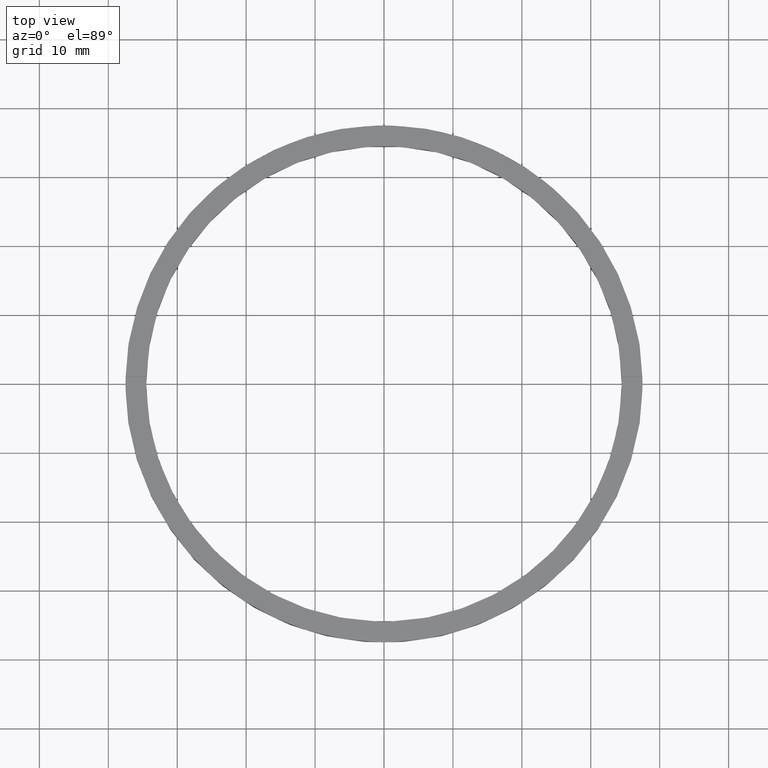
[diagram: clean part render]
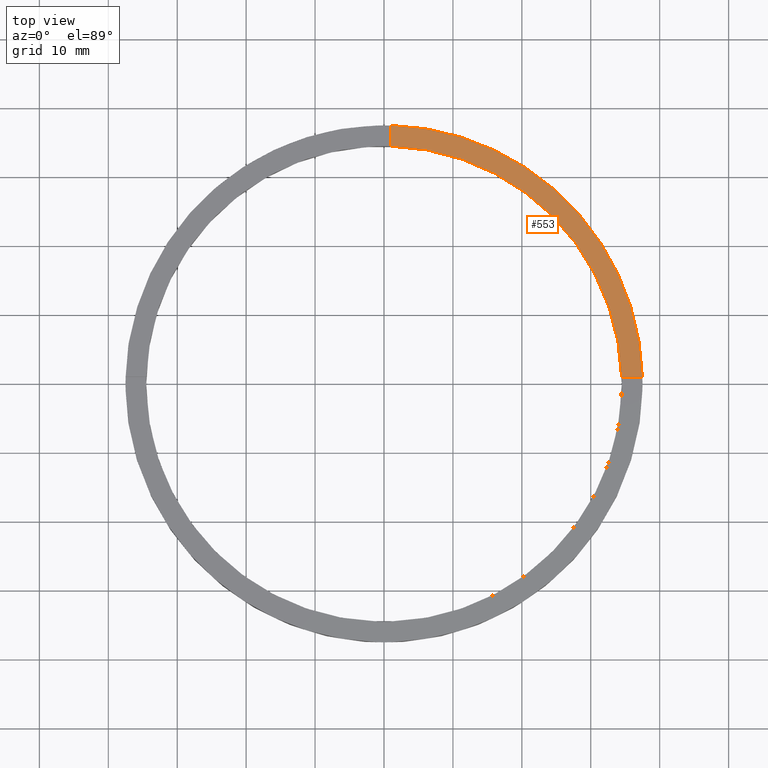
[diagram: same view with one face highlighted and labeled with its STEP entity id]
A machine part, top view. The second image highlights one B-rep face of the part: STEP entity #553.
In plain terms, the highlighted planar face has unit normal (0, 0, 1).
Its self-contained STEP definition (entity closure, byte-faithful):
#5 = DIRECTION ( 'NONE',  ( 0.000000000000000000, 1.000000000000000000, 0.000000000000000000 ) ) ;
#24 = FACE_OUTER_BOUND ( 'NONE', #175, .T. ) ;
#72 = CARTESIAN_POINT ( 'NONE',  ( 0.000000000000000000, 0.000000000000000000, 3.500000000000000000 ) ) ;
#91 = LINE ( 'NONE', #452, #348 ) ;
#118 = CARTESIAN_POINT ( 'NONE',  ( 37.48666429545313150, 0.9999999999998425704, 3.500000000000000000 ) ) ;
#159 = CARTESIAN_POINT ( 'NONE',  ( 34.48550420104076153, 0.9999999999998423483, 3.500000000000000000 ) ) ;
#161 = VERTEX_POINT ( 'NONE', #118 ) ;
#172 = DIRECTION ( 'NONE',  ( 0.000000000000000000, 0.000000000000000000, 1.000000000000000000 ) ) ;
#175 = EDGE_LOOP ( 'NONE', ( #438, #743, #426, #428 ) ) ;
#256 = CIRCLE ( 'NONE', #572, 34.49999999999999289 ) ;
#280 = CARTESIAN_POINT ( 'NONE',  ( 0.000000000000000000, 0.000000000000000000, 3.500000000000000000 ) ) ;
#281 = LINE ( 'NONE', #765, #536 ) ;
#309 = VERTEX_POINT ( 'NONE', #328 ) ;
#328 = CARTESIAN_POINT ( 'NONE',  ( 0.9999999999999746869, 34.48550420104076153, 3.500000000000000000 ) ) ;
#338 = EDGE_CURVE ( 'NONE', #161, #447, #534, .T. ) ;
#348 = VECTOR ( 'NONE', #5, 1000.000000000000000 ) ;
#354 = DIRECTION ( 'NONE',  ( 1.000000000000000000, 0.000000000000000000, 0.000000000000000000 ) ) ;
#357 = DIRECTION ( 'NONE',  ( 1.000000000000000000, 0.000000000000000000, -0.000000000000000000 ) ) ;
#374 = DIRECTION ( 'NONE',  ( -1.000000000000000000, -6.505213034913025371E-17, -0.000000000000000000 ) ) ;
#376 = DIRECTION ( 'NONE',  ( 0.000000000000000000, 0.000000000000000000, 1.000000000000000000 ) ) ;
#391 = PLANE ( 'NONE',  #511 ) ;
#426 = ORIENTED_EDGE ( 'NONE', *, *, #476, .F. ) ;
#427 = VERTEX_POINT ( 'NONE', #159 ) ;
#428 = ORIENTED_EDGE ( 'NONE', *, *, #338, .T. ) ;
#434 = EDGE_CURVE ( 'NONE', #427, #309, #256, .T. ) ;
#438 = ORIENTED_EDGE ( 'NONE', *, *, #694, .F. ) ;
#443 = DIRECTION ( 'NONE',  ( 1.000000000000000000, 0.000000000000000000, 0.000000000000000000 ) ) ;
#447 = VERTEX_POINT ( 'NONE', #571 ) ;
#452 = CARTESIAN_POINT ( 'NONE',  ( 0.9999999999999746869, 27.50000000000000355, 3.500000000000000000 ) ) ;
#476 = EDGE_CURVE ( 'NONE', #161, #427, #281, .T. ) ;
#511 = AXIS2_PLACEMENT_3D ( 'NONE', #766, #376, #357 ) ;
#534 = CIRCLE ( 'NONE', #677, 37.50000000000000711 ) ;
#536 = VECTOR ( 'NONE', #374, 1000.000000000000000 ) ;
#553 = ADVANCED_FACE ( 'NONE', ( #24 ), #391, .T. ) ;
#571 = CARTESIAN_POINT ( 'NONE',  ( 0.9999999999999746869, 37.48666429545313150, 3.500000000000000000 ) ) ;
#572 = AXIS2_PLACEMENT_3D ( 'NONE', #72, #731, #443 ) ;
#677 = AXIS2_PLACEMENT_3D ( 'NONE', #280, #172, #354 ) ;
#694 = EDGE_CURVE ( 'NONE', #309, #447, #91, .T. ) ;
#731 = DIRECTION ( 'NONE',  ( 0.000000000000000000, 0.000000000000000000, 1.000000000000000000 ) ) ;
#743 = ORIENTED_EDGE ( 'NONE', *, *, #434, .F. ) ;
#765 = CARTESIAN_POINT ( 'NONE',  ( 27.49999999999999645, 0.9999999999998419042, 3.500000000000000000 ) ) ;
#766 = CARTESIAN_POINT ( 'NONE',  ( 0.000000000000000000, 0.000000000000000000, 3.500000000000000000 ) ) ;